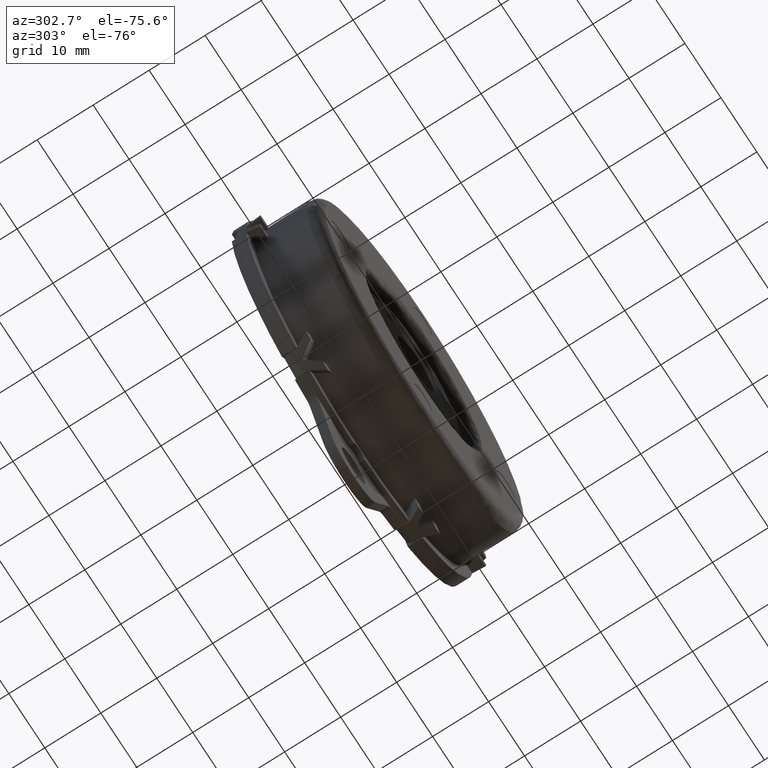
[diagram: clean part render]
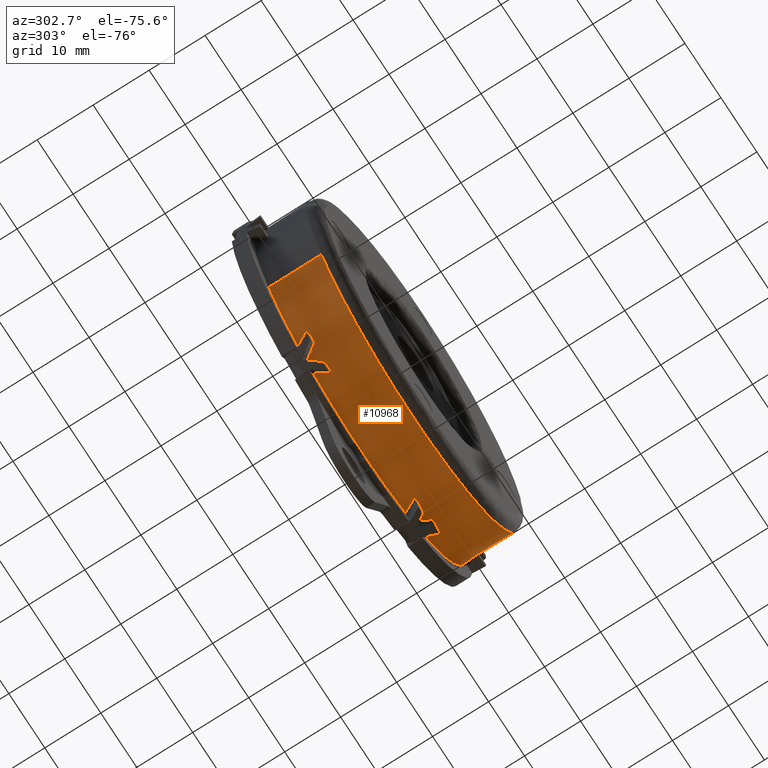
[diagram: same view with one face highlighted and labeled with its STEP entity id]
A machine part, auxiliary view. The second image highlights one B-rep face of the part: STEP entity #10968.
In plain terms, the highlighted face is a freeform B-spline surface patch.
Its self-contained STEP definition (entity closure, byte-faithful):
#4199=CARTESIAN_POINT('',(29.299989999999990,-12.000000000434730,5.322929E-015));
#4200=VERTEX_POINT('',#4199);
#4214=CARTESIAN_POINT('',(25.217121696561119,-12.000000000325221,14.919322616688611));
#4215=VERTEX_POINT('',#4214);
#4216=CARTESIAN_POINT('',(25.217121696561126,-12.000000000325221,14.919322616688603));
#4217=CARTESIAN_POINT('',(29.299989999999333,-12.000000000390974,8.018326537708255));
#4218=CARTESIAN_POINT('',(29.299989999999990,-12.000000000434730,5.322929E-015));
#4226=(BOUNDED_CURVE()B_SPLINE_CURVE(2,(#4216,#4217,#4218),.UNSPECIFIED.,.F.,.U.)B_SPLINE_CURVE_WITH_KNOTS((3,3),(0.163096429690558,0.250000000000000),.UNSPECIFIED.)CURVE()GEOMETRIC_REPRESENTATION_ITEM()RATIONAL_B_SPLINE_CURVE((0.867156176042079,0.898186134262745,1.0))REPRESENTATION_ITEM(''));
#4227=EDGE_CURVE('',#4215,#4200,#4226,.T.);
#4306=CARTESIAN_POINT('',(-25.217121696561129,-12.000000000325221,-14.919322616688600));
#4307=VERTEX_POINT('',#4306);
#4321=CARTESIAN_POINT('',(0.0,-12.000000000000121,-29.299990000000001));
#4322=VERTEX_POINT('',#4321);
#4323=CARTESIAN_POINT('',(0.0,-12.000000000000121,-29.299990000000001));
#4324=CARTESIAN_POINT('',(-16.709020783357232,-12.000000000139751,-29.299989999999603));
#4325=CARTESIAN_POINT('',(-25.217121696561126,-12.000000000325221,-14.919322616688603));
#4333=(BOUNDED_CURVE()B_SPLINE_CURVE(2,(#4323,#4324,#4325),.UNSPECIFIED.,.F.,.U.)B_SPLINE_CURVE_WITH_KNOTS((3,3),(0.500000000000000,0.663096429690558),.UNSPECIFIED.)CURVE()GEOMETRIC_REPRESENTATION_ITEM()RATIONAL_B_SPLINE_CURVE((1.0,0.808920646923802,0.867156176042079))REPRESENTATION_ITEM(''));
#4334=EDGE_CURVE('',#4322,#4307,#4333,.T.);
#4336=CARTESIAN_POINT('',(29.299989999999990,-12.000000000434730,5.322929E-015));
#4337=CARTESIAN_POINT('',(29.299990000000005,-12.000000000217424,-29.299990000000005));
#4338=CARTESIAN_POINT('',(0.0,-12.000000000000121,-29.299990000000001));
#4346=(BOUNDED_CURVE()B_SPLINE_CURVE(2,(#4336,#4337,#4338),.UNSPECIFIED.,.F.,.U.)B_SPLINE_CURVE_WITH_KNOTS((3,3),(0.250000000000000,0.500000000000000),.UNSPECIFIED.)CURVE()GEOMETRIC_REPRESENTATION_ITEM()RATIONAL_B_SPLINE_CURVE((1.0,0.707106781186547,1.0))REPRESENTATION_ITEM(''));
#4347=EDGE_CURVE('',#4200,#4322,#4346,.T.);
#7091=CARTESIAN_POINT('',(29.224646151065851,0.0,2.099999999999920));
#7092=VERTEX_POINT('',#7091);
#7098=CARTESIAN_POINT('',(29.231659915235749,0.0,1.999999999999920));
#7099=VERTEX_POINT('',#7098);
#7100=CARTESIAN_POINT('',(29.231659915235749,0.0,1.999999999999920));
#7101=CARTESIAN_POINT('',(29.228238567119401,0.0,2.050005999169316));
#7102=CARTESIAN_POINT('',(29.224646151065851,0.0,2.099999999999920));
#7110=(BOUNDED_CURVE()B_SPLINE_CURVE(2,(#7100,#7101,#7102),.UNSPECIFIED.,.F.,.U.)CURVE()GEOMETRIC_REPRESENTATION_ITEM()QUASI_UNIFORM_CURVE()RATIONAL_B_SPLINE_CURVE((1.0,0.999998536791209,1.0))REPRESENTATION_ITEM(''));
#7111=EDGE_CURVE('',#7099,#7092,#7110,.T.);
#7135=CARTESIAN_POINT('',(29.231659915235749,0.0,-1.999999999999940));
#7136=VERTEX_POINT('',#7135);
#7142=CARTESIAN_POINT('',(29.224646151065851,0.0,-2.099999999999920));
#7143=VERTEX_POINT('',#7142);
#7144=CARTESIAN_POINT('',(29.224646151065851,0.0,-2.099999999999920));
#7145=CARTESIAN_POINT('',(29.228238556438697,0.0,-2.050005998401857));
#7146=CARTESIAN_POINT('',(29.231659915235760,0.0,-1.999999999999937));
#7154=(BOUNDED_CURVE()B_SPLINE_CURVE(2,(#7144,#7145,#7146),.UNSPECIFIED.,.F.,.U.)CURVE()GEOMETRIC_REPRESENTATION_ITEM()QUASI_UNIFORM_CURVE()RATIONAL_B_SPLINE_CURVE((1.0,0.999998536791209,1.0))REPRESENTATION_ITEM(''));
#7155=EDGE_CURVE('',#7143,#7136,#7154,.T.);
#7163=CARTESIAN_POINT('',(16.430976423480150,0.0,-24.259285983434150));
#7164=VERTEX_POINT('',#7163);
#7170=CARTESIAN_POINT('',(16.347880765186702,0.0,-24.315360081381499));
#7171=VERTEX_POINT('',#7170);
#7172=CARTESIAN_POINT('',(16.347880765186702,0.0,-24.315360081381499));
#7173=CARTESIAN_POINT('',(16.389476556751426,0.0,-24.287394107412414));
#7174=CARTESIAN_POINT('',(16.430976423480150,0.0,-24.259285983434150));
#7182=(BOUNDED_CURVE()B_SPLINE_CURVE(2,(#7172,#7173,#7174),.UNSPECIFIED.,.F.,.U.)CURVE()GEOMETRIC_REPRESENTATION_ITEM()QUASI_UNIFORM_CURVE()RATIONAL_B_SPLINE_CURVE((1.0,0.999998536791209,1.0))REPRESENTATION_ITEM(''));
#7183=EDGE_CURVE('',#7171,#7164,#7182,.T.);
#7207=CARTESIAN_POINT('',(12.883779150049060,0.0,-26.315360081381399));
#7208=VERTEX_POINT('',#7207);
#7214=CARTESIAN_POINT('',(12.793669727585661,0.0,-26.359285983434098));
#7215=VERTEX_POINT('',#7214);
#7216=CARTESIAN_POINT('',(12.793669727585661,0.0,-26.359285983434098));
#7217=CARTESIAN_POINT('',(12.838762005692999,0.0,-26.337400096948578));
#7218=CARTESIAN_POINT('',(12.883779150049060,0.0,-26.315360081381410));
#7226=(BOUNDED_CURVE()B_SPLINE_CURVE(2,(#7216,#7217,#7218),.UNSPECIFIED.,.F.,.U.)CURVE()GEOMETRIC_REPRESENTATION_ITEM()QUASI_UNIFORM_CURVE()RATIONAL_B_SPLINE_CURVE((1.0,0.999998536791209,1.0))REPRESENTATION_ITEM(''));
#7227=EDGE_CURVE('',#7215,#7208,#7226,.T.);
#7241=CARTESIAN_POINT('',(-12.793669727585661,0.0,-26.359285983434098));
#7242=VERTEX_POINT('',#7241);
#7248=CARTESIAN_POINT('',(-12.883779150049060,0.0,-26.315360081381399));
#7249=VERTEX_POINT('',#7248);
#7250=CARTESIAN_POINT('',(-12.883779150049060,0.0,-26.315360081381399));
#7251=CARTESIAN_POINT('',(-12.838762010368500,0.0,-26.337400106582169));
#7252=CARTESIAN_POINT('',(-12.793669727585661,0.0,-26.359285983434098));
#7260=(BOUNDED_CURVE()B_SPLINE_CURVE(2,(#7250,#7251,#7252),.UNSPECIFIED.,.F.,.U.)CURVE()GEOMETRIC_REPRESENTATION_ITEM()QUASI_UNIFORM_CURVE()RATIONAL_B_SPLINE_CURVE((1.0,0.999998536791209,1.0))REPRESENTATION_ITEM(''));
#7261=EDGE_CURVE('',#7249,#7242,#7260,.T.);
#7285=CARTESIAN_POINT('',(-16.347880765186702,0.0,-24.315360081381499));
#7286=VERTEX_POINT('',#7285);
#7292=CARTESIAN_POINT('',(-16.430976423480150,0.0,-24.259285983434150));
#7293=VERTEX_POINT('',#7292);
#7294=CARTESIAN_POINT('',(-16.430976423480150,0.0,-24.259285983434150));
#7295=CARTESIAN_POINT('',(-16.389476550745943,0.0,-24.287394098546720));
#7296=CARTESIAN_POINT('',(-16.347880765186691,0.0,-24.315360081381481));
#7304=(BOUNDED_CURVE()B_SPLINE_CURVE(2,(#7294,#7295,#7296),.UNSPECIFIED.,.F.,.U.)CURVE()GEOMETRIC_REPRESENTATION_ITEM()QUASI_UNIFORM_CURVE()RATIONAL_B_SPLINE_CURVE((1.0,0.999998536791209,1.0))REPRESENTATION_ITEM(''));
#7305=EDGE_CURVE('',#7293,#7286,#7304,.T.);
#7447=CARTESIAN_POINT('',(-12.793669716849800,-1.609999999999890,-26.359285964839049));
#7448=VERTEX_POINT('',#7447);
#7454=CARTESIAN_POINT('',(12.793677311467841,-1.609999999999890,-26.359282278733652));
#7455=VERTEX_POINT('',#7454);
#7456=CARTESIAN_POINT('',(-12.793669716849800,-1.609999999999890,-26.359285964839049));
#7457=CARTESIAN_POINT('',(0.000004691848010,-1.609999999999890,-32.568788189903650));
#7458=CARTESIAN_POINT('',(12.793677311467841,-1.609999999999890,-26.359282278733652));
#7466=(BOUNDED_CURVE()B_SPLINE_CURVE(2,(#7456,#7457,#7458),.UNSPECIFIED.,.F.,.U.)CURVE()GEOMETRIC_REPRESENTATION_ITEM()QUASI_UNIFORM_CURVE()RATIONAL_B_SPLINE_CURVE((1.0,0.899634301072406,1.0))REPRESENTATION_ITEM(''));
#7467=EDGE_CURVE('',#7448,#7455,#7466,.T.);
#7513=CARTESIAN_POINT('',(12.793669727585661,-2.599999999999935,-26.359285983434098));
#7514=VERTEX_POINT('',#7513);
#7520=CARTESIAN_POINT('',(-12.793669727585661,-2.599999999999935,-26.359285983434098));
#7521=VERTEX_POINT('',#7520);
#7522=CARTESIAN_POINT('',(-12.793669727585661,-2.599999999999935,-26.359285983434098));
#7523=CARTESIAN_POINT('',(-1.568190E-015,-2.599999999999935,-32.568784025424073));
#7524=CARTESIAN_POINT('',(12.793669727585661,-2.599999999999935,-26.359285983434098));
#7532=(BOUNDED_CURVE()B_SPLINE_CURVE(2,(#7522,#7523,#7524),.UNSPECIFIED.,.F.,.U.)CURVE()GEOMETRIC_REPRESENTATION_ITEM()QUASI_UNIFORM_CURVE()RATIONAL_B_SPLINE_CURVE((1.0,0.899634363952268,1.0))REPRESENTATION_ITEM(''));
#7533=EDGE_CURVE('',#7521,#7514,#7532,.T.);
#8088=CARTESIAN_POINT('',(25.217120448898282,-1.599999999999935,14.919333563057901));
#8089=VERTEX_POINT('',#8088);
#8103=CARTESIAN_POINT('',(29.224646129594149,-1.599999999999935,2.099999999999920));
#8104=VERTEX_POINT('',#8103);
#8105=CARTESIAN_POINT('',(29.224646129594149,-1.599999999999935,2.099999999999920));
#8106=CARTESIAN_POINT('',(28.730159809699604,-1.599999999999934,8.981489864903988));
#8107=CARTESIAN_POINT('',(25.217120448898282,-1.599999999999935,14.919333563057902));
#8115=(BOUNDED_CURVE()B_SPLINE_CURVE(2,(#8105,#8106,#8107),.UNSPECIFIED.,.F.,.U.)B_SPLINE_CURVE_WITH_KNOTS((3,3),(0.0,0.511580370490344),.UNSPECIFIED.)CURVE()GEOMETRIC_REPRESENTATION_ITEM()RATIONAL_B_SPLINE_CURVE((1.0,0.948654878558099,0.949844069616437))REPRESENTATION_ITEM(''));
#8116=EDGE_CURVE('',#8104,#8089,#8115,.T.);
#8133=CARTESIAN_POINT('',(29.224646129594149,-1.609999999999890,2.099999999999920));
#8134=VERTEX_POINT('',#8133);
#8140=CARTESIAN_POINT('',(25.217120299305162,-1.610000000045369,14.919333815904810));
#8141=VERTEX_POINT('',#8140);
#8142=CARTESIAN_POINT('',(29.224646129594149,-1.609999999999890,2.099999999999920));
#8143=CARTESIAN_POINT('',(28.730159798587735,-1.610000000022630,8.981490019542335));
#8144=CARTESIAN_POINT('',(25.217120299305162,-1.610000000045369,14.919333815904814));
#8152=(BOUNDED_CURVE()B_SPLINE_CURVE(2,(#8142,#8143,#8144),.UNSPECIFIED.,.F.,.U.)B_SPLINE_CURVE_WITH_KNOTS((3,3),(0.0,0.511580381396126),.UNSPECIFIED.)CURVE()GEOMETRIC_REPRESENTATION_ITEM()RATIONAL_B_SPLINE_CURVE((1.0,0.948654877463532,0.949844069667139))REPRESENTATION_ITEM(''));
#8153=EDGE_CURVE('',#8134,#8141,#8152,.T.);
#8255=CARTESIAN_POINT('',(29.224646734642249,-1.599999999999935,-2.099991579815095));
#8256=VERTEX_POINT('',#8255);
#8262=CARTESIAN_POINT('',(16.430976423480150,-1.599999999999935,-24.259285983434150));
#8263=VERTEX_POINT('',#8262);
#8264=CARTESIAN_POINT('',(16.430976423480150,-1.599999999999935,-24.259285983434150));
#8265=CARTESIAN_POINT('',(28.205400288787043,-1.599999999999936,-16.284390032640577));
#8266=CARTESIAN_POINT('',(29.224646734642249,-1.599999999999935,-2.099991579815095));
#8274=(BOUNDED_CURVE()B_SPLINE_CURVE(2,(#8264,#8265,#8266),.UNSPECIFIED.,.F.,.U.)CURVE()GEOMETRIC_REPRESENTATION_ITEM()QUASI_UNIFORM_CURVE()RATIONAL_B_SPLINE_CURVE((1.0,0.899634301060939,1.0))REPRESENTATION_ITEM(''));
#8275=EDGE_CURVE('',#8263,#8256,#8274,.T.);
#8292=CARTESIAN_POINT('',(16.430976423480150,-1.609999999999890,-24.259285983434150));
#8293=VERTEX_POINT('',#8292);
#8299=CARTESIAN_POINT('',(29.224646734642249,-1.609999999999890,-2.099991579815095));
#8300=VERTEX_POINT('',#8299);
#8301=CARTESIAN_POINT('',(16.430976423480150,-1.609999999999890,-24.259285983434150));
#8302=CARTESIAN_POINT('',(28.205400288787043,-1.609999999999891,-16.284390032640577));
#8303=CARTESIAN_POINT('',(29.224646734642249,-1.609999999999890,-2.099991579815095));
#8311=(BOUNDED_CURVE()B_SPLINE_CURVE(2,(#8301,#8302,#8303),.UNSPECIFIED.,.F.,.U.)CURVE()GEOMETRIC_REPRESENTATION_ITEM()QUASI_UNIFORM_CURVE()RATIONAL_B_SPLINE_CURVE((1.0,0.899634301060939,1.0))REPRESENTATION_ITEM(''));
#8312=EDGE_CURVE('',#8293,#8300,#8311,.T.);
#8327=CARTESIAN_POINT('',(-16.430969423174400,-1.599999999999935,-24.259290698918601));
#8328=VERTEX_POINT('',#8327);
#8334=CARTESIAN_POINT('',(-25.217120450970260,-1.599999999999935,-14.919333564282530));
#8335=VERTEX_POINT('',#8334);
#8336=CARTESIAN_POINT('',(-25.217120450970253,-1.599999999999935,-14.919333564282530));
#8337=CARTESIAN_POINT('',(-21.871328838850271,-1.599999999999935,-20.574498758261836));
#8338=CARTESIAN_POINT('',(-16.430969423174400,-1.599999999999935,-24.259290698918601));
#8346=(BOUNDED_CURVE()B_SPLINE_CURVE(2,(#8336,#8337,#8338),.UNSPECIFIED.,.F.,.U.)B_SPLINE_CURVE_WITH_KNOTS((3,3),(0.511580370607263,1.0),.UNSPECIFIED.)CURVE()GEOMETRIC_REPRESENTATION_ITEM()RATIONAL_B_SPLINE_CURVE((0.949844069611250,0.950979422520441,1.0))REPRESENTATION_ITEM(''));
#8347=EDGE_CURVE('',#8335,#8328,#8346,.T.);
#8386=CARTESIAN_POINT('',(-25.217120299305162,-1.610000000045395,-14.919333815904810));
#8387=VERTEX_POINT('',#8386);
#8401=CARTESIAN_POINT('',(-16.430969423174400,-1.609999999999890,-24.259290698918601));
#8402=VERTEX_POINT('',#8401);
#8403=CARTESIAN_POINT('',(-25.217120299305162,-1.610000000045395,-14.919333815904814));
#8404=CARTESIAN_POINT('',(-21.871328713190991,-1.610000000022643,-20.574498844685902));
#8405=CARTESIAN_POINT('',(-16.430969423174400,-1.609999999999890,-24.259290698918601));
#8413=(BOUNDED_CURVE()B_SPLINE_CURVE(2,(#8403,#8404,#8405),.UNSPECIFIED.,.F.,.U.)B_SPLINE_CURVE_WITH_KNOTS((3,3),(0.511580381396126,1.0),.UNSPECIFIED.)CURVE()GEOMETRIC_REPRESENTATION_ITEM()RATIONAL_B_SPLINE_CURVE((0.949844069667139,0.950979423608873,1.0))REPRESENTATION_ITEM(''));
#8414=EDGE_CURVE('',#8387,#8402,#8413,.T.);
#8733=CARTESIAN_POINT('',(-12.858229407723821,-2.599999999999915,-26.327843635559049));
#8734=VERTEX_POINT('',#8733);
#8741=CARTESIAN_POINT('',(-12.883779150049060,-2.599999999999935,-26.315360081381399));
#8742=VERTEX_POINT('',#8741);
#8748=CARTESIAN_POINT('',(-12.883779150049060,-2.599999999999935,-26.315360081381399));
#8749=CARTESIAN_POINT('',(-12.871007309750846,-2.599999999999925,-26.321608056681772));
#8750=CARTESIAN_POINT('',(-12.858229407723821,-2.599999999999915,-26.327843635559049));
#8758=(BOUNDED_CURVE()B_SPLINE_CURVE(2,(#8748,#8749,#8750),.UNSPECIFIED.,.F.,.U.)CURVE()GEOMETRIC_REPRESENTATION_ITEM()QUASI_UNIFORM_CURVE()RATIONAL_B_SPLINE_CURVE((1.0,0.999999882260025,1.0))REPRESENTATION_ITEM(''));
#8759=EDGE_CURVE('',#8742,#8734,#8758,.T.);
#8772=CARTESIAN_POINT('',(-12.793669727585661,-2.599999999999935,-26.359285983434098));
#8773=CARTESIAN_POINT('',(-12.793669716849800,-1.609999999999890,-26.359285964839049));
#8774=QUASI_UNIFORM_CURVE('',1,(#8772,#8773),.UNSPECIFIED.,.F.,.U.);
#8775=EDGE_CURVE('',#7521,#7448,#8774,.T.);
#8785=CARTESIAN_POINT('',(-16.371471064996051,-2.599999999999935,-24.299483051456001));
#8786=VERTEX_POINT('',#8785);
#8792=CARTESIAN_POINT('',(-16.347880765186702,-2.599999999999935,-24.315360081381499));
#8793=VERTEX_POINT('',#8792);
#8794=CARTESIAN_POINT('',(-16.371471064996051,-2.599999999999935,-24.299483051456019));
#8795=CARTESIAN_POINT('',(-16.359679767247972,-2.599999999999935,-24.307427290001854));
#8796=CARTESIAN_POINT('',(-16.347880765186691,-2.599999999999935,-24.315360081381481));
#8804=(BOUNDED_CURVE()B_SPLINE_CURVE(2,(#8794,#8795,#8796),.UNSPECIFIED.,.F.,.U.)CURVE()GEOMETRIC_REPRESENTATION_ITEM()QUASI_UNIFORM_CURVE()RATIONAL_B_SPLINE_CURVE((1.0,0.999999882266767,1.0))REPRESENTATION_ITEM(''));
#8805=EDGE_CURVE('',#8786,#8793,#8804,.T.);
#8823=CARTESIAN_POINT('',(-16.430976423480150,-2.599999999999935,-24.259285983434150));
#8824=VERTEX_POINT('',#8823);
#8825=CARTESIAN_POINT('',(-16.430976423480150,-2.599999999999935,-24.259285983434150));
#8826=CARTESIAN_POINT('',(-16.430969423174400,-1.609999999999890,-24.259290698918601));
#8827=QUASI_UNIFORM_CURVE('',1,(#8825,#8826),.UNSPECIFIED.,.F.,.U.);
#8828=EDGE_CURVE('',#8824,#8402,#8827,.T.);
#8843=CARTESIAN_POINT('',(16.371466711396700,-2.599999999999915,-24.299475132556449));
#8844=VERTEX_POINT('',#8843);
#8851=CARTESIAN_POINT('',(16.347880765186702,-2.599999999999935,-24.315360081381499));
#8852=VERTEX_POINT('',#8851);
#8858=CARTESIAN_POINT('',(16.347880765186702,-2.599999999999935,-24.315360081381499));
#8859=CARTESIAN_POINT('',(16.359677590669488,-2.599999999999925,-24.307423330879413));
#8860=CARTESIAN_POINT('',(16.371466711396700,-2.599999999999915,-24.299475132556449));
#8868=(BOUNDED_CURVE()B_SPLINE_CURVE(2,(#8858,#8859,#8860),.UNSPECIFIED.,.F.,.U.)CURVE()GEOMETRIC_REPRESENTATION_ITEM()QUASI_UNIFORM_CURVE()RATIONAL_B_SPLINE_CURVE((1.0,0.999999882260025,1.0))REPRESENTATION_ITEM(''));
#8869=EDGE_CURVE('',#8852,#8844,#8868,.T.);
#8881=CARTESIAN_POINT('',(16.430976423480150,-2.599999999999935,-24.259285983434150));
#8882=VERTEX_POINT('',#8881);
#8888=CARTESIAN_POINT('',(16.430976423480150,-2.599999999999935,-24.259285983434150));
#8889=CARTESIAN_POINT('',(16.430976423480150,-1.609999999999890,-24.259285983434150));
#8890=QUASI_UNIFORM_CURVE('',1,(#8888,#8889),.UNSPECIFIED.,.F.,.U.);
#8891=EDGE_CURVE('',#8882,#8293,#8890,.T.);
#8901=CARTESIAN_POINT('',(12.858234088892260,-2.599999999999935,-26.327851365336500));
#8902=VERTEX_POINT('',#8901);
#8908=CARTESIAN_POINT('',(12.883779150049060,-2.599999999999935,-26.315360081381399));
#8909=VERTEX_POINT('',#8908);
#8910=CARTESIAN_POINT('',(12.858234088892250,-2.599999999999935,-26.327851365336489));
#8911=CARTESIAN_POINT('',(12.871009650161140,-2.599999999999935,-26.321611921215784));
#8912=CARTESIAN_POINT('',(12.883779150049060,-2.599999999999935,-26.315360081381410));
#8920=(BOUNDED_CURVE()B_SPLINE_CURVE(2,(#8910,#8911,#8912),.UNSPECIFIED.,.F.,.U.)CURVE()GEOMETRIC_REPRESENTATION_ITEM()QUASI_UNIFORM_CURVE()RATIONAL_B_SPLINE_CURVE((1.0,0.999999882266767,1.0))REPRESENTATION_ITEM(''));
#8921=EDGE_CURVE('',#8902,#8909,#8920,.T.);
#8939=CARTESIAN_POINT('',(12.793669727585661,-2.599999999999935,-26.359285983434098));
#8940=CARTESIAN_POINT('',(12.793677311467841,-1.609999999999890,-26.359282278733652));
#8941=QUASI_UNIFORM_CURVE('',1,(#8939,#8940),.UNSPECIFIED.,.F.,.U.);
#8942=EDGE_CURVE('',#7514,#7455,#8941,.T.);
#9596=CARTESIAN_POINT('',(-17.576186145647402,-5.062030000000000,-23.442847407549451));
#9597=VERTEX_POINT('',#9596);
#9603=CARTESIAN_POINT('',(-16.371471064996051,-2.599999999999935,-24.299483051456001));
#9604=CARTESIAN_POINT('',(-16.984636583386997,-3.833959598204555,-23.886365041303023));
#9605=CARTESIAN_POINT('',(-17.576186145647402,-5.062030000000000,-23.442847407549451));
#9613=(BOUNDED_CURVE()B_SPLINE_CURVE(2,(#9603,#9604,#9605),.UNSPECIFIED.,.F.,.U.)CURVE()GEOMETRIC_REPRESENTATION_ITEM()QUASI_UNIFORM_CURVE()RATIONAL_B_SPLINE_CURVE((1.0,0.999681779962013,1.0))REPRESENTATION_ITEM(''));
#9614=EDGE_CURVE('',#8786,#9597,#9613,.T.);
#9626=CARTESIAN_POINT('',(-16.347876254666350,-5.062030000000000,-24.315352268931200));
#9627=VERTEX_POINT('',#9626);
#9633=CARTESIAN_POINT('',(-17.576186145647458,-5.062030000000000,-23.442847407549511));
#9634=CARTESIAN_POINT('',(-16.973251329458549,-5.062030000000000,-23.894895504727984));
#9635=CARTESIAN_POINT('',(-16.347876254666350,-5.062030000000000,-24.315352268931179));
#9643=(BOUNDED_CURVE()B_SPLINE_CURVE(2,(#9633,#9634,#9635),.UNSPECIFIED.,.F.,.U.)CURVE()GEOMETRIC_REPRESENTATION_ITEM()QUASI_UNIFORM_CURVE()RATIONAL_B_SPLINE_CURVE((1.0,0.999669421492760,1.0))REPRESENTATION_ITEM(''));
#9644=EDGE_CURVE('',#9597,#9627,#9643,.T.);
#9656=CARTESIAN_POINT('',(-14.682739700077461,-2.599999999999915,-25.355602317828499));
#9657=VERTEX_POINT('',#9656);
#9663=CARTESIAN_POINT('',(-16.347876254666339,-5.062029999999998,-24.315352268931179));
#9664=CARTESIAN_POINT('',(-15.532744308088132,-3.832451768960322,-24.863387767101308));
#9665=CARTESIAN_POINT('',(-14.682739700077450,-2.599999999999912,-25.355602317828492));
#9673=(BOUNDED_CURVE()B_SPLINE_CURVE(2,(#9663,#9664,#9665),.UNSPECIFIED.,.F.,.U.)CURVE()GEOMETRIC_REPRESENTATION_ITEM()QUASI_UNIFORM_CURVE()RATIONAL_B_SPLINE_CURVE((1.0,0.999438565831762,1.0))REPRESENTATION_ITEM(''));
#9674=EDGE_CURVE('',#9627,#9657,#9673,.T.);
#9686=CARTESIAN_POINT('',(-12.883774639528660,-5.062030000000000,-26.315352268931250));
#9687=VERTEX_POINT('',#9686);
#9693=CARTESIAN_POINT('',(-14.617225885456101,-2.599999999999915,-25.393426736335801));
#9694=VERTEX_POINT('',#9693);
#9695=CARTESIAN_POINT('',(-14.617225885456101,-2.599999999999915,-25.393426736335801));
#9696=CARTESIAN_POINT('',(-13.765953276417727,-3.832451768947716,-25.883445044838808));
#9697=CARTESIAN_POINT('',(-12.883774639528660,-5.062030000000000,-26.315352268931250));
#9705=(BOUNDED_CURVE()B_SPLINE_CURVE(2,(#9695,#9696,#9697),.UNSPECIFIED.,.F.,.U.)CURVE()GEOMETRIC_REPRESENTATION_ITEM()QUASI_UNIFORM_CURVE()RATIONAL_B_SPLINE_CURVE((1.0,0.999438565831756,1.0))REPRESENTATION_ITEM(''));
#9706=EDGE_CURVE('',#9694,#9687,#9705,.T.);
#9722=CARTESIAN_POINT('',(-11.513999057324201,-5.062030000000000,-26.942851365585600));
#9723=VERTEX_POINT('',#9722);
#9729=CARTESIAN_POINT('',(-12.883774639528660,-5.062030000000000,-26.315352268931250));
#9730=CARTESIAN_POINT('',(-12.206956337085384,-5.062030000000001,-26.646716804411145));
#9731=CARTESIAN_POINT('',(-11.513999057324201,-5.062030000000000,-26.942851365585600));
#9739=(BOUNDED_CURVE()B_SPLINE_CURVE(2,(#9729,#9730,#9731),.UNSPECIFIED.,.F.,.U.)CURVE()GEOMETRIC_REPRESENTATION_ITEM()QUASI_UNIFORM_CURVE()RATIONAL_B_SPLINE_CURVE((1.0,0.999669417073585,1.0))REPRESENTATION_ITEM(''));
#9740=EDGE_CURVE('',#9687,#9723,#9739,.T.);
#9753=CARTESIAN_POINT('',(-11.513999057324170,-5.062029999999984,-26.942851365585611));
#9754=CARTESIAN_POINT('',(-12.193873771388807,-3.833959623385120,-26.652307625035654));
#9755=CARTESIAN_POINT('',(-12.858229407723821,-2.599999999999919,-26.327843635559031));
#9763=(BOUNDED_CURVE()B_SPLINE_CURVE(2,(#9753,#9754,#9755),.UNSPECIFIED.,.F.,.U.)CURVE()GEOMETRIC_REPRESENTATION_ITEM()QUASI_UNIFORM_CURVE()RATIONAL_B_SPLINE_CURVE((1.0,0.999681775708352,1.0))REPRESENTATION_ITEM(''));
#9764=EDGE_CURVE('',#9723,#8734,#9763,.T.);
#9779=CARTESIAN_POINT('',(-16.347880765186702,-2.599999999999935,-24.315360081381499));
#9780=CARTESIAN_POINT('',(-16.347880765186702,0.0,-24.315360081381499));
#9781=QUASI_UNIFORM_CURVE('',1,(#9779,#9780),.UNSPECIFIED.,.F.,.U.);
#9782=EDGE_CURVE('',#8793,#7286,#9781,.T.);
#9795=CARTESIAN_POINT('',(-12.883779150049060,-2.599999999999935,-26.315360081381399));
#9796=CARTESIAN_POINT('',(-12.883779150049060,0.0,-26.315360081381399));
#9797=QUASI_UNIFORM_CURVE('',1,(#9795,#9796),.UNSPECIFIED.,.F.,.U.);
#9798=EDGE_CURVE('',#8742,#7249,#9797,.T.);
#9810=CARTESIAN_POINT('',(11.514008319156440,-5.062030000000000,-26.942847407549699));
#9811=VERTEX_POINT('',#9810);
#9817=CARTESIAN_POINT('',(12.858234088892260,-2.599999999999935,-26.327851365336500));
#9818=CARTESIAN_POINT('',(12.193880638143522,-3.833959598204498,-26.652309275911275));
#9819=CARTESIAN_POINT('',(11.514008319156440,-5.062030000000000,-26.942847407549699));
#9827=(BOUNDED_CURVE()B_SPLINE_CURVE(2,(#9817,#9818,#9819),.UNSPECIFIED.,.F.,.U.)CURVE()GEOMETRIC_REPRESENTATION_ITEM()QUASI_UNIFORM_CURVE()RATIONAL_B_SPLINE_CURVE((1.0,0.999681779961626,1.0))REPRESENTATION_ITEM(''));
#9828=EDGE_CURVE('',#8902,#9811,#9827,.T.);
#9840=CARTESIAN_POINT('',(12.883774639528840,-5.062030000000000,-26.315352268931051));
#9841=VERTEX_POINT('',#9840);
#9847=CARTESIAN_POINT('',(11.514008319156440,-5.062030000000000,-26.942847407549699));
#9848=CARTESIAN_POINT('',(12.206960863139862,-5.062030000000000,-26.646714588493030));
#9849=CARTESIAN_POINT('',(12.883774639528831,-5.062030000000000,-26.315352268931040));
#9857=(BOUNDED_CURVE()B_SPLINE_CURVE(2,(#9847,#9848,#9849),.UNSPECIFIED.,.F.,.U.)CURVE()GEOMETRIC_REPRESENTATION_ITEM()QUASI_UNIFORM_CURVE()RATIONAL_B_SPLINE_CURVE((1.0,0.999669421492760,1.0))REPRESENTATION_ITEM(''));
#9858=EDGE_CURVE('',#9811,#9841,#9857,.T.);
#9870=CARTESIAN_POINT('',(14.617225885456399,-2.599999999999915,-25.393426736335599));
#9871=VERTEX_POINT('',#9870);
#9877=CARTESIAN_POINT('',(12.883774639528861,-5.062030000000029,-26.315352268931019));
#9878=CARTESIAN_POINT('',(13.765953276408961,-3.832451768960348,-25.883445044843096));
#9879=CARTESIAN_POINT('',(14.617225885456399,-2.599999999999918,-25.393426736335599));
#9887=(BOUNDED_CURVE()B_SPLINE_CURVE(2,(#9877,#9878,#9879),.UNSPECIFIED.,.F.,.U.)CURVE()GEOMETRIC_REPRESENTATION_ITEM()QUASI_UNIFORM_CURVE()RATIONAL_B_SPLINE_CURVE((1.0,0.999438565831772,1.0))REPRESENTATION_ITEM(''));
#9888=EDGE_CURVE('',#9841,#9871,#9887,.T.);
#9900=CARTESIAN_POINT('',(16.347876254666549,-5.062030000000000,-24.315352268931001));
#9901=VERTEX_POINT('',#9900);
#9907=CARTESIAN_POINT('',(14.682739700077761,-2.599999999999915,-25.355602317828350));
#9908=VERTEX_POINT('',#9907);
#9909=CARTESIAN_POINT('',(14.682739700077761,-2.599999999999915,-25.355602317828350));
#9910=CARTESIAN_POINT('',(15.532744308077907,-3.832451768944488,-24.863387767108190));
#9911=CARTESIAN_POINT('',(16.347876254666570,-5.062029999999967,-24.315352268931029));
#9919=(BOUNDED_CURVE()B_SPLINE_CURVE(2,(#9909,#9910,#9911),.UNSPECIFIED.,.F.,.U.)CURVE()GEOMETRIC_REPRESENTATION_ITEM()QUASI_UNIFORM_CURVE()RATIONAL_B_SPLINE_CURVE((1.0,0.999438565831993,1.0))REPRESENTATION_ITEM(''));
#9920=EDGE_CURVE('',#9908,#9901,#9919,.T.);
#9936=CARTESIAN_POINT('',(17.576194204323301,-5.062030000000000,-23.442841365585600));
#9937=VERTEX_POINT('',#9936);
#9943=CARTESIAN_POINT('',(16.347876254666570,-5.062030000000000,-24.315352268931029));
#9944=CARTESIAN_POINT('',(16.973255511527100,-5.062030000000001,-23.894892693008927));
#9945=CARTESIAN_POINT('',(17.576194204323311,-5.062030000000000,-23.442841365585611));
#9953=(BOUNDED_CURVE()B_SPLINE_CURVE(2,(#9943,#9944,#9945),.UNSPECIFIED.,.F.,.U.)CURVE()GEOMETRIC_REPRESENTATION_ITEM()QUASI_UNIFORM_CURVE()RATIONAL_B_SPLINE_CURVE((1.0,0.999669417073585,1.0))REPRESENTATION_ITEM(''));
#9954=EDGE_CURVE('',#9901,#9937,#9953,.T.);
#9967=CARTESIAN_POINT('',(17.576194204323301,-5.062030000000000,-23.442841365585600));
#9968=CARTESIAN_POINT('',(16.984638587064271,-3.833959623385227,-23.886358269081217));
#9969=CARTESIAN_POINT('',(16.371466711396788,-2.600000000000069,-24.299475132556410));
#9977=(BOUNDED_CURVE()B_SPLINE_CURVE(2,(#9967,#9968,#9969),.UNSPECIFIED.,.F.,.U.)CURVE()GEOMETRIC_REPRESENTATION_ITEM()QUASI_UNIFORM_CURVE()RATIONAL_B_SPLINE_CURVE((1.0,0.999681775708097,1.0))REPRESENTATION_ITEM(''));
#9978=EDGE_CURVE('',#9937,#8844,#9977,.T.);
#9993=CARTESIAN_POINT('',(12.883779150049060,-2.599999999999935,-26.315360081381399));
#9994=CARTESIAN_POINT('',(12.883779150049060,0.0,-26.315360081381399));
#9995=QUASI_UNIFORM_CURVE('',1,(#9993,#9994),.UNSPECIFIED.,.F.,.U.);
#9996=EDGE_CURVE('',#8909,#7208,#9995,.T.);
#10009=CARTESIAN_POINT('',(16.347880765186702,-2.599999999999935,-24.315360081381499));
#10010=CARTESIAN_POINT('',(16.347880765186702,0.0,-24.315360081381499));
#10011=QUASI_UNIFORM_CURVE('',1,(#10009,#10010),.UNSPECIFIED.,.F.,.U.);
#10012=EDGE_CURVE('',#8852,#7171,#10011,.T.);
#10023=CARTESIAN_POINT('',(29.229696119120501,-2.599999999999915,2.028368503002555));
#10024=VERTEX_POINT('',#10023);
#10031=CARTESIAN_POINT('',(29.231659915235749,-2.599999999999935,1.999999999999920));
#10032=VERTEX_POINT('',#10031);
#10038=CARTESIAN_POINT('',(29.231659915235749,-2.599999999999935,1.999999999999920));
#10039=CARTESIAN_POINT('',(29.230684900418975,-2.599999999999925,2.014184725801591));
#10040=CARTESIAN_POINT('',(29.229696119120501,-2.599999999999915,2.028368503002555));
#10048=(BOUNDED_CURVE()B_SPLINE_CURVE(2,(#10038,#10039,#10040),.UNSPECIFIED.,.F.,.U.)CURVE()GEOMETRIC_REPRESENTATION_ITEM()QUASI_UNIFORM_CURVE()RATIONAL_B_SPLINE_CURVE((1.0,0.999999882260025,1.0))REPRESENTATION_ITEM(''));
#10049=EDGE_CURVE('',#10032,#10024,#10048,.T.);
#10061=CARTESIAN_POINT('',(29.224646151065851,-2.599999999999935,2.099999999999920));
#10062=VERTEX_POINT('',#10061);
#10068=CARTESIAN_POINT('',(29.224646151065851,-2.599999999999935,2.099999999999920));
#10069=CARTESIAN_POINT('',(29.224646129594149,-1.609999999999890,2.099999999999920));
#10070=QUASI_UNIFORM_CURVE('',1,(#10068,#10069),.UNSPECIFIED.,.F.,.U.);
#10071=EDGE_CURVE('',#10062,#8134,#10070,.T.);
#10081=CARTESIAN_POINT('',(29.229705153888350,-2.599999999999935,-2.028368313880460));
#10082=VERTEX_POINT('',#10081);
#10088=CARTESIAN_POINT('',(29.231659915235749,-2.599999999999935,-1.999999999999940));
#10089=VERTEX_POINT('',#10088);
#10090=CARTESIAN_POINT('',(29.229705153888339,-2.599999999999935,-2.028368313880474));
#10091=CARTESIAN_POINT('',(29.230689417408826,-2.599999999999934,-2.014184631212646));
#10092=CARTESIAN_POINT('',(29.231659915235760,-2.599999999999935,-1.999999999999937));
#10100=(BOUNDED_CURVE()B_SPLINE_CURVE(2,(#10090,#10091,#10092),.UNSPECIFIED.,.F.,.U.)CURVE()GEOMETRIC_REPRESENTATION_ITEM()QUASI_UNIFORM_CURVE()RATIONAL_B_SPLINE_CURVE((1.0,0.999999882266767,1.0))REPRESENTATION_ITEM(''));
#10101=EDGE_CURVE('',#10082,#10089,#10100,.T.);
#10119=CARTESIAN_POINT('',(29.224646151065851,-2.599999999999935,-2.099999999999920));
#10120=VERTEX_POINT('',#10119);
#10121=CARTESIAN_POINT('',(29.224646151065851,-2.599999999999935,-2.099999999999920));
#10122=CARTESIAN_POINT('',(29.224646734642249,-1.609999999999890,-2.099991579815095));
#10123=QUASI_UNIFORM_CURVE('',1,(#10121,#10122),.UNSPECIFIED.,.F.,.U.);
#10124=EDGE_CURVE('',#10120,#8300,#10123,.T.);
#10140=CARTESIAN_POINT('',(29.090194464803751,-5.062030000000000,-3.500000000000000));
#10141=VERTEX_POINT('',#10140);
#10147=CARTESIAN_POINT('',(29.229705153888350,-2.599999999999935,-2.028368313880460));
#10148=CARTESIAN_POINT('',(29.178517221530484,-3.833959598204625,-2.765944234608197));
#10149=CARTESIAN_POINT('',(29.090194464803751,-5.062030000000000,-3.500000000000000));
#10157=(BOUNDED_CURVE()B_SPLINE_CURVE(2,(#10147,#10148,#10149),.UNSPECIFIED.,.F.,.U.)CURVE()GEOMETRIC_REPRESENTATION_ITEM()QUASI_UNIFORM_CURVE()RATIONAL_B_SPLINE_CURVE((1.0,0.999681779961911,1.0))REPRESENTATION_ITEM(''));
#10158=EDGE_CURVE('',#10082,#10141,#10157,.T.);
#10170=CARTESIAN_POINT('',(29.231650894195148,-5.062030000000000,-1.999999999999885));
#10171=VERTEX_POINT('',#10170);
#10177=CARTESIAN_POINT('',(29.090194464803780,-5.062030000000000,-3.500000000000002));
#10178=CARTESIAN_POINT('',(29.180212192598290,-5.062030000000000,-2.751819083765099));
#10179=CARTESIAN_POINT('',(29.231650894195159,-5.062030000000000,-1.999999999999888));
#10187=(BOUNDED_CURVE()B_SPLINE_CURVE(2,(#10177,#10178,#10179),.UNSPECIFIED.,.F.,.U.)CURVE()GEOMETRIC_REPRESENTATION_ITEM()QUASI_UNIFORM_CURVE()RATIONAL_B_SPLINE_CURVE((1.0,0.999669421492760,1.0))REPRESENTATION_ITEM(''));
#10188=EDGE_CURVE('',#10141,#10171,#10187,.T.);
#10200=CARTESIAN_POINT('',(29.299965585533801,-2.599999999999915,-0.037824418507170));
#10201=VERTEX_POINT('',#10200);
#10207=CARTESIAN_POINT('',(29.231650894195148,-5.062030000000000,-1.999999999999885));
#10208=CARTESIAN_POINT('',(29.298697584497042,-3.832451768960368,-1.020057277741877));
#10209=CARTESIAN_POINT('',(29.299965585533791,-2.599999999999911,-0.037824418507167));
#10217=(BOUNDED_CURVE()B_SPLINE_CURVE(2,(#10207,#10208,#10209),.UNSPECIFIED.,.F.,.U.)CURVE()GEOMETRIC_REPRESENTATION_ITEM()QUASI_UNIFORM_CURVE()RATIONAL_B_SPLINE_CURVE((1.0,0.999438565832009,1.0))REPRESENTATION_ITEM(''));
#10218=EDGE_CURVE('',#10171,#10201,#10217,.T.);
#10230=CARTESIAN_POINT('',(29.231650894195099,-5.062030000000000,2.000000000000115));
#10231=VERTEX_POINT('',#10230);
#10237=CARTESIAN_POINT('',(29.299965585533801,-2.599999999999915,0.037824418507396));
#10238=VERTEX_POINT('',#10237);
#10239=CARTESIAN_POINT('',(29.299965585533801,-2.599999999999915,0.037824418507396));
#10240=CARTESIAN_POINT('',(29.298697584497202,-3.832451768957232,1.020057277739583));
#10241=CARTESIAN_POINT('',(29.231650894195141,-5.062030000000010,2.000000000000083));
#10249=(BOUNDED_CURVE()B_SPLINE_CURVE(2,(#10239,#10240,#10241),.UNSPECIFIED.,.F.,.U.)CURVE()GEOMETRIC_REPRESENTATION_ITEM()QUASI_UNIFORM_CURVE()RATIONAL_B_SPLINE_CURVE((1.0,0.999438565831762,1.0))REPRESENTATION_ITEM(''));
#10250=EDGE_CURVE('',#10238,#10231,#10249,.T.);
#10266=CARTESIAN_POINT('',(29.090193261647499,-5.062030000000000,3.500010000000000));
#10267=VERTEX_POINT('',#10266);
#10273=CARTESIAN_POINT('',(29.231650894195141,-5.062030000000000,2.000000000000120));
#10274=CARTESIAN_POINT('',(29.180211848612426,-5.062030000000001,2.751824111402263));
#10275=CARTESIAN_POINT('',(29.090193261647482,-5.062030000000000,3.500009999999995));
#10283=(BOUNDED_CURVE()B_SPLINE_CURVE(2,(#10273,#10274,#10275),.UNSPECIFIED.,.F.,.U.)CURVE()GEOMETRIC_REPRESENTATION_ITEM()QUASI_UNIFORM_CURVE()RATIONAL_B_SPLINE_CURVE((1.0,0.999669417073585,1.0))REPRESENTATION_ITEM(''));
#10284=EDGE_CURVE('',#10231,#10267,#10283,.T.);
#10297=CARTESIAN_POINT('',(29.090193261647482,-5.062030000000000,3.500010000000005));
#10298=CARTESIAN_POINT('',(29.178512358452974,-3.833959623385197,2.765949355954414));
#10299=CARTESIAN_POINT('',(29.229696119120490,-2.599999999999912,2.028368503002552));
#10307=(BOUNDED_CURVE()B_SPLINE_CURVE(2,(#10297,#10298,#10299),.UNSPECIFIED.,.F.,.U.)CURVE()GEOMETRIC_REPRESENTATION_ITEM()QUASI_UNIFORM_CURVE()RATIONAL_B_SPLINE_CURVE((1.0,0.999681775707988,1.0))REPRESENTATION_ITEM(''));
#10308=EDGE_CURVE('',#10267,#10024,#10307,.T.);
#10323=CARTESIAN_POINT('',(29.231659915235749,-2.599999999999935,-1.999999999999940));
#10324=CARTESIAN_POINT('',(29.231659915235749,0.0,-1.999999999999940));
#10325=QUASI_UNIFORM_CURVE('',1,(#10323,#10324),.UNSPECIFIED.,.F.,.U.);
#10326=EDGE_CURVE('',#10089,#7136,#10325,.T.);
#10339=CARTESIAN_POINT('',(29.231659915235749,-2.599999999999935,1.999999999999920));
#10340=CARTESIAN_POINT('',(29.231659915235749,0.0,1.999999999999920));
#10341=QUASI_UNIFORM_CURVE('',1,(#10339,#10340),.UNSPECIFIED.,.F.,.U.);
#10342=EDGE_CURVE('',#10032,#7099,#10341,.T.);
#10355=CARTESIAN_POINT('',(29.299965585533791,-2.599999999999915,-0.037824418507167));
#10356=CARTESIAN_POINT('',(29.300014414486551,-2.599999999999914,2.309545E-013));
#10357=CARTESIAN_POINT('',(29.299965585533791,-2.599999999999915,0.037824418507399));
#10365=(BOUNDED_CURVE()B_SPLINE_CURVE(2,(#10355,#10356,#10357),.UNSPECIFIED.,.F.,.U.)CURVE()GEOMETRIC_REPRESENTATION_ITEM()QUASI_UNIFORM_CURVE()RATIONAL_B_SPLINE_CURVE((1.0,0.999999166741483,1.0))REPRESENTATION_ITEM(''));
#10366=EDGE_CURVE('',#10201,#10238,#10365,.T.);
#10379=CARTESIAN_POINT('',(12.793677311467841,-1.599999999999935,-26.359282278733652));
#10380=VERTEX_POINT('',#10379);
#10386=CARTESIAN_POINT('',(-12.793669727585661,-1.599999999999935,-26.359285983434098));
#10387=VERTEX_POINT('',#10386);
#10388=CARTESIAN_POINT('',(-12.793669727585661,-1.599999999999935,-26.359285983434098));
#10389=CARTESIAN_POINT('',(0.000004690992700,-1.599999999999935,-32.568788190318799));
#10390=CARTESIAN_POINT('',(12.793677311467841,-1.599999999999935,-26.359282278733652));
#10398=(BOUNDED_CURVE()B_SPLINE_CURVE(2,(#10388,#10389,#10390),.UNSPECIFIED.,.F.,.U.)CURVE()GEOMETRIC_REPRESENTATION_ITEM()QUASI_UNIFORM_CURVE()RATIONAL_B_SPLINE_CURVE((1.0,0.899634301060939,1.0))REPRESENTATION_ITEM(''));
#10399=EDGE_CURVE('',#10387,#10380,#10398,.T.);
#10427=CARTESIAN_POINT('',(25.217119864870099,-2.600000000045553,14.919333682688350));
#10428=VERTEX_POINT('',#10427);
#10442=CARTESIAN_POINT('',(29.224646151065851,-2.599999999999935,2.099999999999920));
#10443=CARTESIAN_POINT('',(28.730159203145053,-2.600000000022745,8.981489725115040));
#10444=CARTESIAN_POINT('',(25.217119864870103,-2.600000000045553,14.919333682688350));
#10452=(BOUNDED_CURVE()B_SPLINE_CURVE(2,(#10442,#10443,#10444),.UNSPECIFIED.,.F.,.U.)B_SPLINE_CURVE_WITH_KNOTS((3,3),(0.0,0.511580545501842),.UNSPECIFIED.)CURVE()GEOMETRIC_REPRESENTATION_ITEM()RATIONAL_B_SPLINE_CURVE((1.0,0.948654893161062,0.949844101853152))REPRESENTATION_ITEM(''));
#10453=EDGE_CURVE('',#10062,#10428,#10452,.T.);
#10466=CARTESIAN_POINT('',(14.617225885456399,-2.599999999999915,-25.393426736335599));
#10467=CARTESIAN_POINT('',(14.650007207243325,-2.599999999999914,-25.374556814195564));
#10468=CARTESIAN_POINT('',(14.682739700077750,-2.599999999999915,-25.355602317828321));
#10476=(BOUNDED_CURVE()B_SPLINE_CURVE(2,(#10466,#10467,#10468),.UNSPECIFIED.,.F.,.U.)CURVE()GEOMETRIC_REPRESENTATION_ITEM()QUASI_UNIFORM_CURVE()RATIONAL_B_SPLINE_CURVE((1.0,0.999999166741483,1.0))REPRESENTATION_ITEM(''));
#10477=EDGE_CURVE('',#9871,#9908,#10476,.T.);
#10490=CARTESIAN_POINT('',(-14.682739700077450,-2.599999999999915,-25.355602317828499));
#10491=CARTESIAN_POINT('',(-14.650007207243316,-2.599999999999915,-25.374556814195575));
#10492=CARTESIAN_POINT('',(-14.617225885456101,-2.599999999999915,-25.393426736335769));
#10500=(BOUNDED_CURVE()B_SPLINE_CURVE(2,(#10490,#10491,#10492),.UNSPECIFIED.,.F.,.U.)CURVE()GEOMETRIC_REPRESENTATION_ITEM()QUASI_UNIFORM_CURVE()RATIONAL_B_SPLINE_CURVE((1.0,0.999999166741483,1.0))REPRESENTATION_ITEM(''));
#10501=EDGE_CURVE('',#9657,#9694,#10500,.T.);
#10587=CARTESIAN_POINT('',(16.430976423480150,-2.599999999999935,-24.259285983434150));
#10588=CARTESIAN_POINT('',(28.205394336386046,-2.599999999999935,-16.284392012712019));
#10589=CARTESIAN_POINT('',(29.224646151065851,-2.599999999999935,-2.099999999999920));
#10597=(BOUNDED_CURVE()B_SPLINE_CURVE(2,(#10587,#10588,#10589),.UNSPECIFIED.,.F.,.U.)CURVE()GEOMETRIC_REPRESENTATION_ITEM()QUASI_UNIFORM_CURVE()RATIONAL_B_SPLINE_CURVE((1.0,0.899634363952268,1.0))REPRESENTATION_ITEM(''));
#10598=EDGE_CURVE('',#8882,#10120,#10597,.T.);
#10611=CARTESIAN_POINT('',(-25.217119864870099,-2.600000000045554,-14.919333682688340));
#10612=VERTEX_POINT('',#10611);
#10613=CARTESIAN_POINT('',(-25.217119864870103,-2.600000000045554,-14.919333682688338));
#10614=CARTESIAN_POINT('',(-21.871330369041598,-2.600000000022745,-20.574494744263212));
#10615=CARTESIAN_POINT('',(-16.430976423480150,-2.599999999999935,-24.259285983434150));
#10623=(BOUNDED_CURVE()B_SPLINE_CURVE(2,(#10613,#10614,#10615),.UNSPECIFIED.,.F.,.U.)B_SPLINE_CURVE_WITH_KNOTS((3,3),(0.511580545501842,1.0),.UNSPECIFIED.)CURVE()GEOMETRIC_REPRESENTATION_ITEM()RATIONAL_B_SPLINE_CURVE((0.949844101853152,0.950979470791206,1.0))REPRESENTATION_ITEM(''));
#10624=EDGE_CURVE('',#10612,#8824,#10623,.T.);
#10690=CARTESIAN_POINT('',(-16.430969423174400,-1.599999999999935,-24.259290698918601));
#10691=CARTESIAN_POINT('',(-16.430976423480150,0.0,-24.259285983434150));
#10692=QUASI_UNIFORM_CURVE('',1,(#10690,#10691),.UNSPECIFIED.,.F.,.U.);
#10693=EDGE_CURVE('',#8328,#7293,#10692,.T.);
#10705=CARTESIAN_POINT('',(16.430976423480150,-1.599999999999935,-24.259285983434150));
#10706=CARTESIAN_POINT('',(16.430976423480150,0.0,-24.259285983434150));
#10707=QUASI_UNIFORM_CURVE('',1,(#10705,#10706),.UNSPECIFIED.,.F.,.U.);
#10708=EDGE_CURVE('',#8263,#7164,#10707,.T.);
#10722=CARTESIAN_POINT('',(29.224646734642249,-1.599999999999935,-2.099991579815095));
#10723=CARTESIAN_POINT('',(29.224646151065851,0.0,-2.099999999999920));
#10724=QUASI_UNIFORM_CURVE('',1,(#10722,#10723),.UNSPECIFIED.,.F.,.U.);
#10725=EDGE_CURVE('',#8256,#7143,#10724,.T.);
#10817=CARTESIAN_POINT('',(29.224646129594149,-1.599999999999935,2.099999999999920));
#10818=CARTESIAN_POINT('',(29.224646151065851,0.0,2.099999999999920));
#10819=QUASI_UNIFORM_CURVE('',1,(#10817,#10818),.UNSPECIFIED.,.F.,.U.);
#10820=EDGE_CURVE('',#8104,#7092,#10819,.T.);
#10833=CARTESIAN_POINT('',(-12.793669727585661,-1.599999999999935,-26.359285983434098));
#10834=CARTESIAN_POINT('',(-12.793669727585661,0.0,-26.359285983434098));
#10835=QUASI_UNIFORM_CURVE('',1,(#10833,#10834),.UNSPECIFIED.,.F.,.U.);
#10836=EDGE_CURVE('',#10387,#7242,#10835,.T.);
#10850=CARTESIAN_POINT('',(12.793677311467841,-1.599999999999935,-26.359282278733652));
#10851=CARTESIAN_POINT('',(12.793669727585661,0.0,-26.359285983434098));
#10852=QUASI_UNIFORM_CURVE('',1,(#10850,#10851),.UNSPECIFIED.,.F.,.U.);
#10853=EDGE_CURVE('',#10380,#7215,#10852,.T.);
#10858=CARTESIAN_POINT('',(-25.217116874411719,0.300000000010869,-14.919330767241510));
#10859=CARTESIAN_POINT('',(-10.297786107170213,0.300000000010869,-40.136447641653241));
#10860=CARTESIAN_POINT('',(14.919330767241510,0.300000000010869,-25.217116874411719));
#10861=CARTESIAN_POINT('',(40.136447641653241,0.300000000010869,-10.297786107170213));
#10862=CARTESIAN_POINT('',(25.217116874411719,0.300000000010869,14.919330767241510));
#10863=CARTESIAN_POINT('',(-25.217116874411719,-12.307500000445881,-14.919330767241510));
#10864=CARTESIAN_POINT('',(-10.297786107170213,-12.307500000445875,-40.136447641653241));
#10865=CARTESIAN_POINT('',(14.919330767241510,-12.307500000445881,-25.217116874411719));
#10866=CARTESIAN_POINT('',(40.136447641653241,-12.307500000445875,-10.297786107170213));
#10867=CARTESIAN_POINT('',(25.217116874411719,-12.307500000445881,14.919330767241510));
#10875=(BOUNDED_SURFACE()B_SPLINE_SURFACE(2,1,((#10858,#10863),(#10859,#10864),(#10860,#10865),(#10861,#10866),(#10862,#10867)),.UNSPECIFIED.,.F.,.F.,.U.)B_SPLINE_SURFACE_WITH_KNOTS((3,2,3),(2,2),(0.0,48.545812941584217,97.091625883168447),(0.0,12.607500000456749),.UNSPECIFIED.)GEOMETRIC_REPRESENTATION_ITEM()RATIONAL_B_SPLINE_SURFACE(((1.0,1.0),(0.707106781186548,0.707106781186548),(1.0,1.0),(0.707106781186548,0.707106781186548),(1.0,1.0)))REPRESENTATION_ITEM('')SURFACE());
#10876=ORIENTED_EDGE('',*,*,#4334,.T.);
#10877=CARTESIAN_POINT('',(-25.217119864870099,-2.600000000045554,-14.919333682688340));
#10878=CARTESIAN_POINT('',(-25.217121696561129,-12.000000000325221,-14.919322616688600));
#10879=QUASI_UNIFORM_CURVE('',1,(#10877,#10878),.UNSPECIFIED.,.F.,.U.);
#10880=EDGE_CURVE('',#10612,#4307,#10879,.T.);
#10881=ORIENTED_EDGE('',*,*,#10880,.F.);
#10882=ORIENTED_EDGE('',*,*,#10624,.T.);
#10883=ORIENTED_EDGE('',*,*,#8828,.T.);
#10884=ORIENTED_EDGE('',*,*,#8414,.F.);
#10885=CARTESIAN_POINT('',(-25.217120450970260,-1.599999999999935,-14.919333564282530));
#10886=CARTESIAN_POINT('',(-25.217120299305162,-1.610000000045395,-14.919333815904810));
#10887=QUASI_UNIFORM_CURVE('',1,(#10885,#10886),.UNSPECIFIED.,.F.,.U.);
#10888=EDGE_CURVE('',#8335,#8387,#10887,.T.);
#10889=ORIENTED_EDGE('',*,*,#10888,.F.);
#10890=ORIENTED_EDGE('',*,*,#8347,.T.);
#10891=ORIENTED_EDGE('',*,*,#10693,.T.);
#10892=ORIENTED_EDGE('',*,*,#7305,.T.);
#10893=ORIENTED_EDGE('',*,*,#9782,.F.);
#10894=ORIENTED_EDGE('',*,*,#8805,.F.);
#10895=ORIENTED_EDGE('',*,*,#9614,.T.);
#10896=ORIENTED_EDGE('',*,*,#9644,.T.);
#10897=ORIENTED_EDGE('',*,*,#9674,.T.);
#10898=ORIENTED_EDGE('',*,*,#10501,.T.);
#10899=ORIENTED_EDGE('',*,*,#9706,.T.);
#10900=ORIENTED_EDGE('',*,*,#9740,.T.);
#10901=ORIENTED_EDGE('',*,*,#9764,.T.);
#10902=ORIENTED_EDGE('',*,*,#8759,.F.);
#10903=ORIENTED_EDGE('',*,*,#9798,.T.);
#10904=ORIENTED_EDGE('',*,*,#7261,.T.);
#10905=ORIENTED_EDGE('',*,*,#10836,.F.);
#10906=ORIENTED_EDGE('',*,*,#10399,.T.);
#10907=ORIENTED_EDGE('',*,*,#10853,.T.);
#10908=ORIENTED_EDGE('',*,*,#7227,.T.);
#10909=ORIENTED_EDGE('',*,*,#9996,.F.);
#10910=ORIENTED_EDGE('',*,*,#8921,.F.);
#10911=ORIENTED_EDGE('',*,*,#9828,.T.);
#10912=ORIENTED_EDGE('',*,*,#9858,.T.);
#10913=ORIENTED_EDGE('',*,*,#9888,.T.);
#10914=ORIENTED_EDGE('',*,*,#10477,.T.);
#10915=ORIENTED_EDGE('',*,*,#9920,.T.);
#10916=ORIENTED_EDGE('',*,*,#9954,.T.);
#10917=ORIENTED_EDGE('',*,*,#9978,.T.);
#10918=ORIENTED_EDGE('',*,*,#8869,.F.);
#10919=ORIENTED_EDGE('',*,*,#10012,.T.);
#10920=ORIENTED_EDGE('',*,*,#7183,.T.);
#10921=ORIENTED_EDGE('',*,*,#10708,.F.);
#10922=ORIENTED_EDGE('',*,*,#8275,.T.);
#10923=ORIENTED_EDGE('',*,*,#10725,.T.);
#10924=ORIENTED_EDGE('',*,*,#7155,.T.);
#10925=ORIENTED_EDGE('',*,*,#10326,.F.);
#10926=ORIENTED_EDGE('',*,*,#10101,.F.);
#10927=ORIENTED_EDGE('',*,*,#10158,.T.);
#10928=ORIENTED_EDGE('',*,*,#10188,.T.);
#10929=ORIENTED_EDGE('',*,*,#10218,.T.);
#10930=ORIENTED_EDGE('',*,*,#10366,.T.);
#10931=ORIENTED_EDGE('',*,*,#10250,.T.);
#10932=ORIENTED_EDGE('',*,*,#10284,.T.);
#10933=ORIENTED_EDGE('',*,*,#10308,.T.);
#10934=ORIENTED_EDGE('',*,*,#10049,.F.);
#10935=ORIENTED_EDGE('',*,*,#10342,.T.);
#10936=ORIENTED_EDGE('',*,*,#7111,.T.);
#10937=ORIENTED_EDGE('',*,*,#10820,.F.);
#10938=ORIENTED_EDGE('',*,*,#8116,.T.);
#10939=CARTESIAN_POINT('',(25.217120448898282,-1.599999999999935,14.919333563057901));
#10940=CARTESIAN_POINT('',(25.217120299305162,-1.610000000045369,14.919333815904810));
#10941=QUASI_UNIFORM_CURVE('',1,(#10939,#10940),.UNSPECIFIED.,.F.,.U.);
#10942=EDGE_CURVE('',#8089,#8141,#10941,.T.);
#10943=ORIENTED_EDGE('',*,*,#10942,.T.);
#10944=ORIENTED_EDGE('',*,*,#8153,.F.);
#10945=ORIENTED_EDGE('',*,*,#10071,.F.);
#10946=ORIENTED_EDGE('',*,*,#10453,.T.);
#10947=CARTESIAN_POINT('',(25.217119864870099,-2.600000000045553,14.919333682688350));
#10948=CARTESIAN_POINT('',(25.217121696561119,-12.000000000325221,14.919322616688611));
#10949=QUASI_UNIFORM_CURVE('',1,(#10947,#10948),.UNSPECIFIED.,.F.,.U.);
#10950=EDGE_CURVE('',#10428,#4215,#10949,.T.);
#10951=ORIENTED_EDGE('',*,*,#10950,.T.);
#10952=ORIENTED_EDGE('',*,*,#4227,.T.);
#10953=ORIENTED_EDGE('',*,*,#4347,.T.);
#10954=EDGE_LOOP('',(#10876,#10881,#10882,#10883,#10884,#10889,#10890,#10891,#10892,#10893,#10894,#10895,#10896,#10897,#10898,#10899,#10900,#10901,#10902,#10903,#10904,#10905,#10906,#10907,#10908,#10909,#10910,#10911,#10912,#10913,#10914,#10915,#10916,#10917,#10918,#10919,#10920,#10921,#10922,#10923,#10924,#10925,#10926,#10927,#10928,#10929,#10930,#10931,#10932,#10933,#10934,#10935,#10936,#10937,#10938,#10943,#10944,#10945,#10946,#10951,#10952,#10953));
#10955=FACE_OUTER_BOUND('',#10954,.T.);
#10956=ORIENTED_EDGE('',*,*,#7533,.T.);
#10957=ORIENTED_EDGE('',*,*,#8942,.T.);
#10958=ORIENTED_EDGE('',*,*,#7467,.F.);
#10959=ORIENTED_EDGE('',*,*,#8775,.F.);
#10960=EDGE_LOOP('',(#10956,#10957,#10958,#10959));
#10961=FACE_BOUND('',#10960,.T.);
#10962=ORIENTED_EDGE('',*,*,#10124,.T.);
#10963=ORIENTED_EDGE('',*,*,#8312,.F.);
#10964=ORIENTED_EDGE('',*,*,#8891,.F.);
#10965=ORIENTED_EDGE('',*,*,#10598,.T.);
#10966=EDGE_LOOP('',(#10962,#10963,#10964,#10965));
#10967=FACE_BOUND('',#10966,.T.);
#10968=ADVANCED_FACE('',(#10955,#10961,#10967),#10875,.T.);